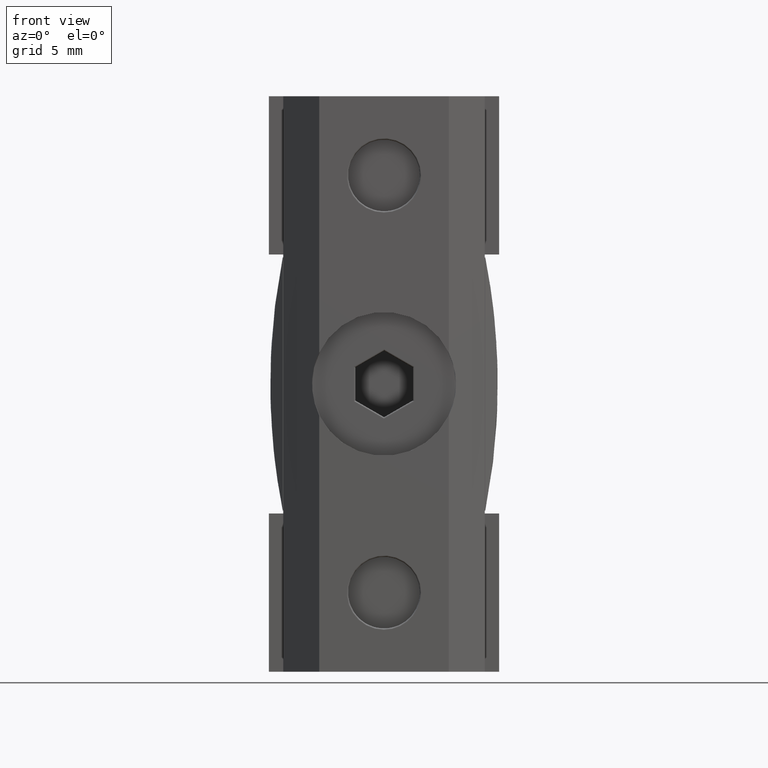
[diagram: clean part render]
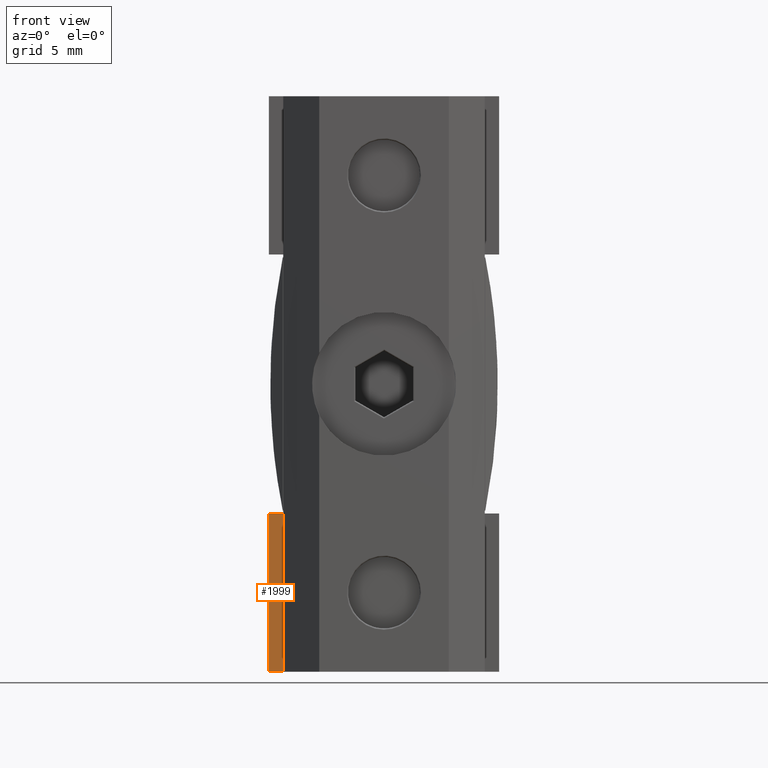
[diagram: same view with one face highlighted and labeled with its STEP entity id]
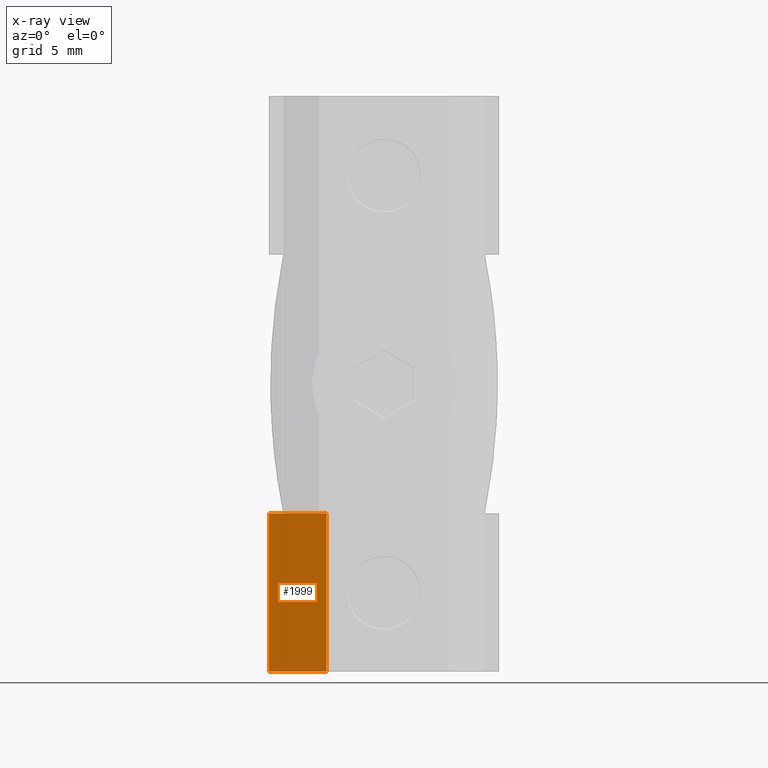
[diagram: x-ray of the same camera — body ghosted, the highlighted face saturated]
A machine part, front view. The second image highlights one B-rep face of the part: STEP entity #1999.
The next image is the same camera in x-ray: the body ghosted, the highlighted face saturated — about 0% of this face is hidden behind the body in this view.
In plain terms, the highlighted planar face has unit normal (0, -1, 0).
Its self-contained STEP definition (entity closure, byte-faithful):
#134=PLANE('',#2185);
#245=FACE_OUTER_BOUND('',#364,.T.);
#364=EDGE_LOOP('',(#1783,#1784,#1785,#1786));
#560=LINE('',#3288,#779);
#599=LINE('',#3363,#818);
#604=LINE('',#3373,#823);
#605=LINE('',#3374,#824);
#779=VECTOR('',#2628,10.);
#818=VECTOR('',#2699,10.);
#823=VECTOR('',#2708,10.);
#824=VECTOR('',#2709,10.);
#994=VERTEX_POINT('',#3286);
#995=VERTEX_POINT('',#3287);
#1015=VERTEX_POINT('',#3362);
#1018=VERTEX_POINT('',#3372);
#1246=EDGE_CURVE('',#994,#995,#560,.T.);
#1285=EDGE_CURVE('',#994,#1015,#599,.T.);
#1290=EDGE_CURVE('',#995,#1018,#604,.T.);
#1291=EDGE_CURVE('',#1015,#1018,#605,.T.);
#1783=ORIENTED_EDGE('',*,*,#1246,.T.);
#1784=ORIENTED_EDGE('',*,*,#1290,.T.);
#1785=ORIENTED_EDGE('',*,*,#1291,.F.);
#1786=ORIENTED_EDGE('',*,*,#1285,.F.);
#1999=ADVANCED_FACE('',(#245),#134,.T.);
#2185=AXIS2_PLACEMENT_3D('',#3371,#2706,#2707);
#2628=DIRECTION('',(-1.,0.,0.));
#2699=DIRECTION('',(0.,0.,-1.));
#2706=DIRECTION('center_axis',(0.,-1.,0.));
#2707=DIRECTION('ref_axis',(1.,0.,0.));
#2708=DIRECTION('',(0.,0.,-1.));
#2709=DIRECTION('',(-1.,0.,0.));
#3286=CARTESIAN_POINT('',(-4.,0.199999999999999,-9.));
#3287=CARTESIAN_POINT('',(-8.,0.199999999999999,-9.));
#3288=CARTESIAN_POINT('',(-4.,0.199999999999999,-9.));
#3362=CARTESIAN_POINT('',(-4.,0.199999999999999,-20.));
#3363=CARTESIAN_POINT('',(-4.,0.199999999999999,0.));
#3371=CARTESIAN_POINT('Origin',(-8.,0.199999999999999,0.));
#3372=CARTESIAN_POINT('',(-8.,0.199999999999999,-20.));
#3373=CARTESIAN_POINT('',(-8.,0.199999999999999,0.));
#3374=CARTESIAN_POINT('',(8.,0.199999999999999,-20.));